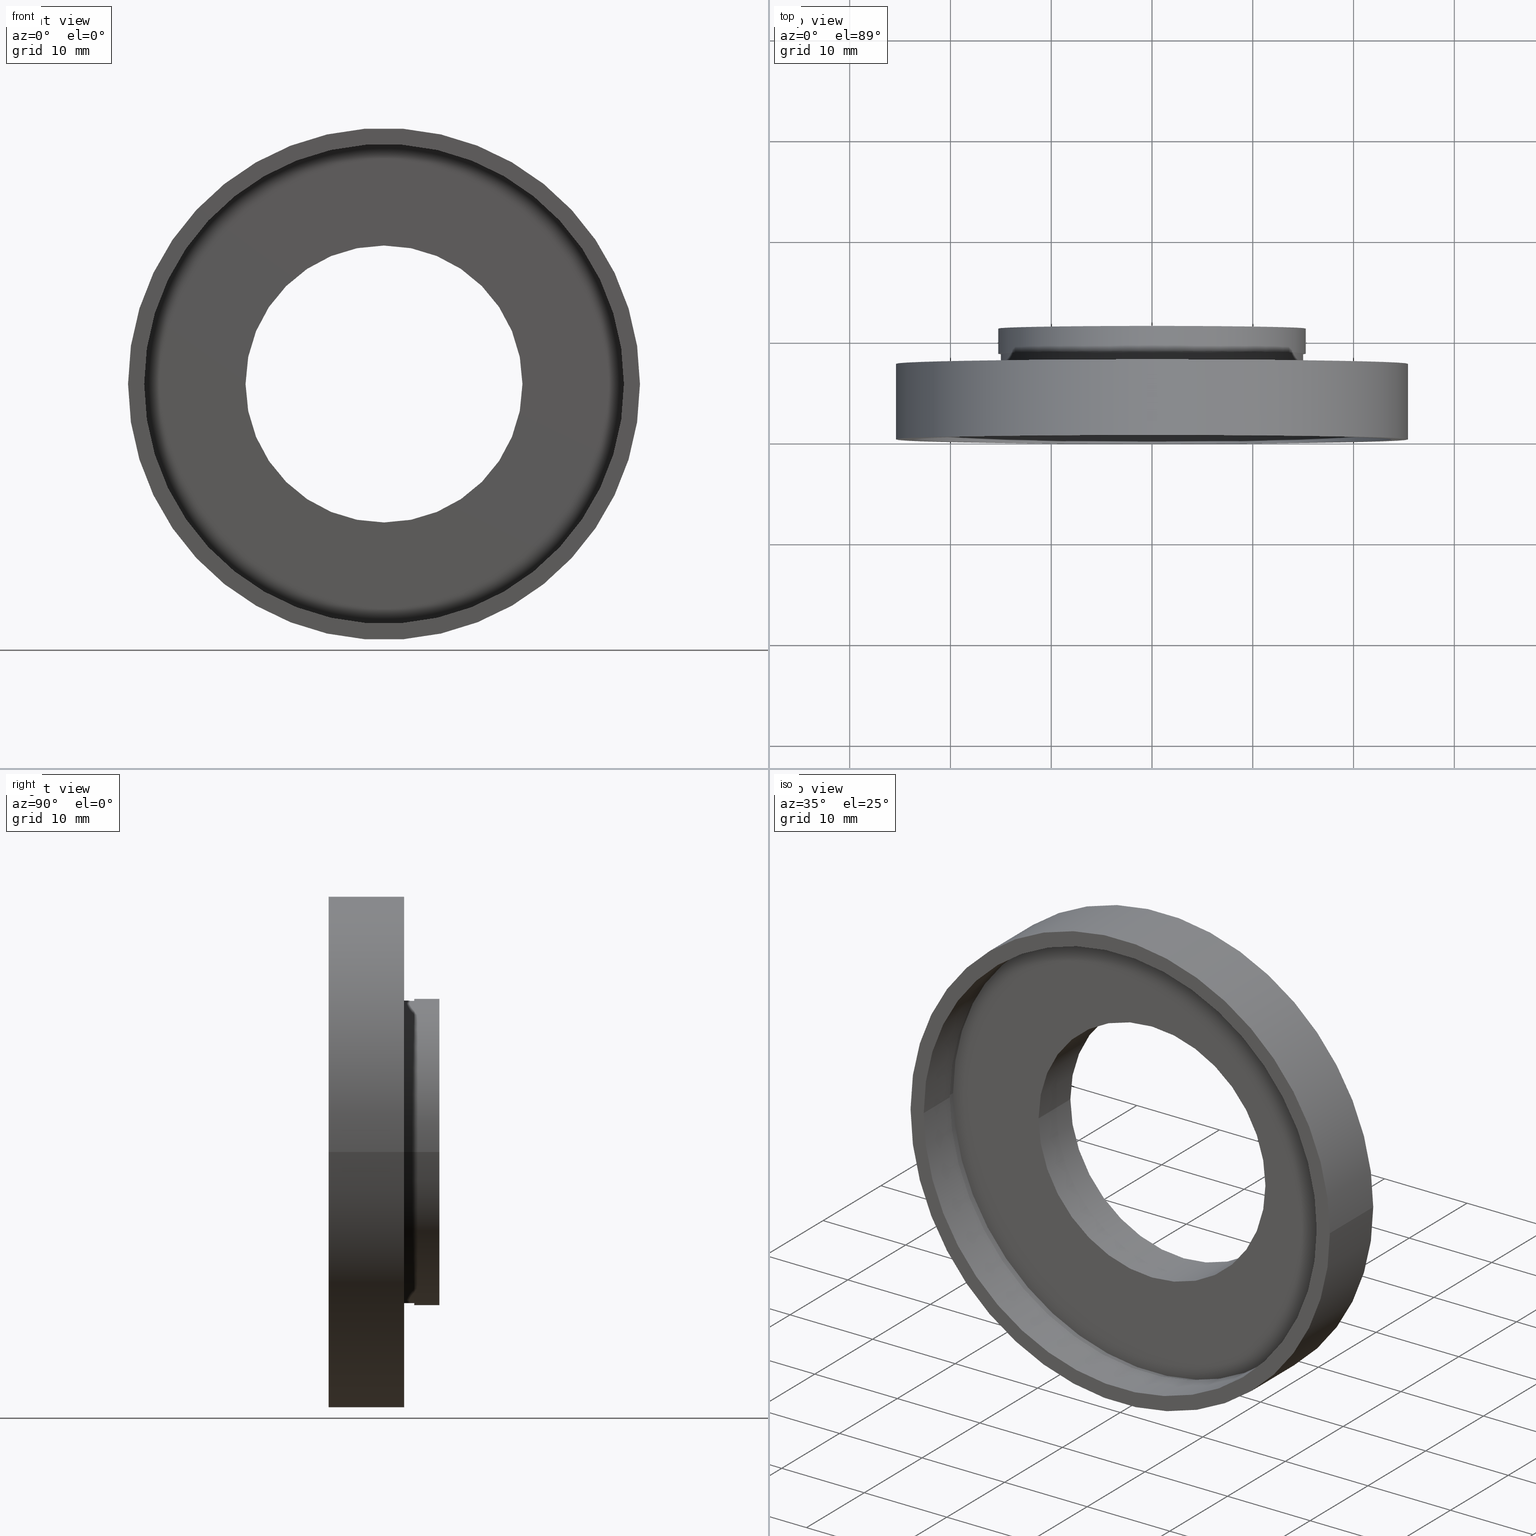
[diagram: canonical four-view strip — front | top / right | iso, engineering-drawing reading convention]
A machine part, canonical four-view strip (front | top / right | iso — engineering-drawing reading convention). The complete STEP part file that produces these views, byte-faithful:
ISO-10303-21;
HEADER;
FILE_DESCRIPTION (( 'STEP AP214' ),
    '1' );
FILE_NAME ('504100.STEP',
    '2019-10-09T07:24:55',
    ( '' ),
    ( '' ),
    'SwSTEP 2.0',
    'SolidWorks 2016',
    '' );
FILE_SCHEMA (( 'AUTOMOTIVE_DESIGN' ));
ENDSEC;

DATA;
#1 = ORIENTED_EDGE ( 'NONE', *, *, #409, .F. ) ;
#2 = FACE_BOUND ( 'NONE', #107, .T. ) ;
#3 = EDGE_CURVE ( 'NONE', #516, #128, #464, .T. ) ;
#4 = CARTESIAN_POINT ( 'NONE',  ( -25.39999999999999100, -6.580049821787884700E-015, 0.0000000000000000000 ) ) ;
#5 = VERTEX_POINT ( 'NONE', #575 ) ;
#6 = VERTEX_POINT ( 'NONE', #49 ) ;
#7 = SURFACE_SIDE_STYLE ('',( #26 ) ) ;
#8 =( GEOMETRIC_REPRESENTATION_CONTEXT ( 3 ) GLOBAL_UNCERTAINTY_ASSIGNED_CONTEXT ( ( #357 ) ) GLOBAL_UNIT_ASSIGNED_CONTEXT ( ( #582, #263, #218 ) ) REPRESENTATION_CONTEXT ( 'NONE', 'WORKASPACE' ) );
#9 = EDGE_CURVE ( 'NONE', #55, #352, #397, .T. ) ;
#10 = SURFACE_STYLE_FILL_AREA ( #11 ) ;
#11 = FILL_AREA_STYLE ('',( #349 ) ) ;
#12 = DIRECTION ( 'NONE',  ( -1.000000000000000000, -1.224646799147351000E-016, 0.0000000000000000000 ) ) ;
#13 = FILL_AREA_STYLE_COLOUR ( '', #207 ) ;
#14 = DIRECTION ( 'NONE',  ( -1.224646799147351000E-016, 1.000000000000000000, -0.0000000000000000000 ) ) ;
#15 = CARTESIAN_POINT ( 'NONE',  ( 15.26000000000000000, 16.88601823708208000, 1.868811015498860900E-015 ) ) ;
#16 =( NAMED_UNIT ( * ) SI_UNIT ( $, .STERADIAN. ) SOLID_ANGLE_UNIT ( ) );
#17 = ORIENTED_EDGE ( 'NONE', *, *, #246, .T. ) ;
#18 = FACE_OUTER_BOUND ( 'NONE', #399, .T. ) ;
#19 = AXIS2_PLACEMENT_3D ( 'NONE', #171, #318, #74 ) ;
#20 = CARTESIAN_POINT ( 'NONE',  ( -15.26000000000000000, 16.88601823708207300, 0.0000000000000000000 ) ) ;
#21 = PRESENTATION_LAYER_ASSIGNMENT (  '', '', ( #244 ) ) ;
#22 = DIRECTION ( 'NONE',  ( -1.000000000000000000, -2.273556325002368600E-016, 0.0000000000000000000 ) ) ;
#23 = CARTESIAN_POINT ( 'NONE',  ( 7.208293393765502500E-016, 10.99999999999999600, 0.0000000000000000000 ) ) ;
#24 = ORIENTED_EDGE ( 'NONE', *, *, #386, .T. ) ;
#25 = CARTESIAN_POINT ( 'NONE',  ( 1.394385078907593000E-015, 5.499999999999998200, 0.0000000000000000000 ) ) ;
#26 = SURFACE_STYLE_FILL_AREA ( #303 ) ;
#27 = DIRECTION ( 'NONE',  ( -1.000000000000000000, -1.079703408284319800E-016, 0.0000000000000000000 ) ) ;
#28 = FACE_OUTER_BOUND ( 'NONE', #489, .T. ) ;
#29 = DIRECTION ( 'NONE',  ( 1.224646799147351000E-016, -1.000000000000000000, 0.0000000000000000000 ) ) ;
#30 = ADVANCED_FACE ( 'NONE', ( #447, #537 ), #622, .F. ) ;
#31 = AXIS2_PLACEMENT_3D ( 'NONE', #621, #149, #354 ) ;
#32 =( GEOMETRIC_REPRESENTATION_CONTEXT ( 3 ) GLOBAL_UNCERTAINTY_ASSIGNED_CONTEXT ( ( #87 ) ) GLOBAL_UNIT_ASSIGNED_CONTEXT ( ( #212, #534, #16 ) ) REPRESENTATION_CONTEXT ( 'NONE', 'WORKASPACE' ) );
#33 = ADVANCED_FACE ( 'NONE', ( #431 ), #314, .F. ) ;
#34 = FACE_BOUND ( 'NONE', #568, .T. ) ;
#35 = APPLICATION_CONTEXT ( 'automotive_design' ) ;
#36 = CIRCLE ( 'NONE', #84, 23.80000000000000400 ) ;
#37 = VERTEX_POINT ( 'NONE', #555 ) ;
#38 = CARTESIAN_POINT ( 'NONE',  ( 1.394385078907593200E-015, 5.499999999999996400, 0.0000000000000000000 ) ) ;
#39 = VERTEX_POINT ( 'NONE', #459 ) ;
#40 = VECTOR ( 'NONE', #396, 1000.000000000000000 ) ;
#41 = STYLED_ITEM ( 'NONE', ( #296 ), #615 ) ;
#42 = APPLICATION_CONTEXT ( 'automotive_design' ) ;
#43 = EDGE_CURVE ( 'NONE', #128, #411, #36, .T. ) ;
#44 = CARTESIAN_POINT ( 'NONE',  ( -13.74000000000000200, 10.99999999999999500, 0.0000000000000000000 ) ) ;
#45 = ORIENTED_EDGE ( 'NONE', *, *, #301, .T. ) ;
#46 = COLOUR_RGB ( '',1.000000000000000000, 1.000000000000000000, 1.000000000000000000 ) ;
#47 = VECTOR ( 'NONE', #547, 1000.000000000000000 ) ;
#48 = FACE_BOUND ( 'NONE', #567, .T. ) ;
#49 = CARTESIAN_POINT ( 'NONE',  ( 15.00000000000000200, 7.500000000000000000, 1.836970198721029600E-015 ) ) ;
#50 = AXIS2_PLACEMENT_3D ( 'NONE', #264, #63, #161 ) ;
#51 = FILL_AREA_STYLE_COLOUR ( '', #581 ) ;
#52 = ORIENTED_EDGE ( 'NONE', *, *, #347, .T. ) ;
#53 = MECHANICAL_DESIGN_GEOMETRIC_PRESENTATION_REPRESENTATION (  '', ( #244 ), #461 ) ;
#54 = EDGE_LOOP ( 'NONE', ( #249, #270 ) ) ;
#55 = VERTEX_POINT ( 'NONE', #118 ) ;
#56 = CARTESIAN_POINT ( 'NONE',  ( 1.026991039163387900E-015, 8.499999999999996400, 0.0000000000000000000 ) ) ;
#57 = ORIENTED_EDGE ( 'NONE', *, *, #217, .T. ) ;
#58 = MECHANICAL_DESIGN_GEOMETRIC_PRESENTATION_REPRESENTATION (  '', ( #41 ), #262 ) ;
#59 = CIRCLE ( 'NONE', #216, 13.74000000000000000 ) ;
#60 = DIRECTION ( 'NONE',  ( -1.000000000000000000, -2.312964634635743000E-016, 0.0000000000000000000 ) ) ;
#61 = FILL_AREA_STYLE ('',( #51 ) ) ;
#62 = VERTEX_POINT ( 'NONE', #272 ) ;
#63 = DIRECTION ( 'NONE',  ( -1.224646799147351000E-016, 1.000000000000000000, -0.0000000000000000000 ) ) ;
#64 = FACE_OUTER_BOUND ( 'NONE', #214, .T. ) ;
#65 = FILL_AREA_STYLE ('',( #13 ) ) ;
#66 = ORIENTED_EDGE ( 'NONE', *, *, #306, .T. ) ;
#67 = DIRECTION ( 'NONE',  ( -1.000000000000000000, -1.457750820148577400E-016, 0.0000000000000000000 ) ) ;
#68 = STYLED_ITEM ( 'NONE', ( #506 ), #280 ) ;
#69 = EDGE_CURVE ( 'NONE', #261, #616, #545, .T. ) ;
#70 = CARTESIAN_POINT ( 'NONE',  ( 25.39999999999999900, 16.88601823708208000, 3.110602869834276900E-015 ) ) ;
#71 = FACE_OUTER_BOUND ( 'NONE', #428, .T. ) ;
#72 =( GEOMETRIC_REPRESENTATION_CONTEXT ( 3 ) GLOBAL_UNCERTAINTY_ASSIGNED_CONTEXT ( ( #467 ) ) GLOBAL_UNIT_ASSIGNED_CONTEXT ( ( #361, #112, #298 ) ) REPRESENTATION_CONTEXT ( 'NONE', 'WORKASPACE' ) );
#73 =( NAMED_UNIT ( * ) PLANE_ANGLE_UNIT ( ) SI_UNIT ( $, .RADIAN. ) );
#74 = DIRECTION ( 'NONE',  ( -1.000000000000000000, -1.224646799147351000E-016, 0.0000000000000000000 ) ) ;
#75 = CARTESIAN_POINT ( 'NONE',  ( 25.39999999999999900, -1.592040838891564500E-016, 0.0000000000000000000 ) ) ;
#76 = DIRECTION ( 'NONE',  ( 1.224646799147351000E-016, -1.000000000000000000, 0.0000000000000000000 ) ) ;
#77 = ORIENTED_EDGE ( 'NONE', *, *, #133, .T. ) ;
#78 = EDGE_CURVE ( 'NONE', #616, #382, #426, .T. ) ;
#79 = DIRECTION ( 'NONE',  ( -1.224646799147351000E-016, 1.000000000000000000, 0.0000000000000000000 ) ) ;
#80 = ORIENTED_EDGE ( 'NONE', *, *, #279, .F. ) ;
#81 = CARTESIAN_POINT ( 'NONE',  ( 1.149455719078122700E-015, 7.499999999999998200, 0.0000000000000000000 ) ) ;
#82 = DIRECTION ( 'NONE',  ( -1.224646799147351000E-016, 1.000000000000000000, -0.0000000000000000000 ) ) ;
#83 = CIRCLE ( 'NONE', #50, 23.80000000000000400 ) ;
#84 = AXIS2_PLACEMENT_3D ( 'NONE', #227, #417, #458 ) ;
#85 = EDGE_CURVE ( 'NONE', #480, #516, #173, .T. ) ;
#86 = ORIENTED_EDGE ( 'NONE', *, *, #279, .T. ) ;
#87 = UNCERTAINTY_MEASURE_WITH_UNIT (LENGTH_MEASURE( 1.000000000000000100E-005 ), #212, 'distance_accuracy_value', 'NONE');
#88 = DIRECTION ( 'NONE',  ( -1.000000000000000000, 0.0000000000000000000, 0.0000000000000000000 ) ) ;
#89 = EDGE_LOOP ( 'NONE', ( #143, #177, #52, #551 ) ) ;
#90 = ADVANCED_FACE ( 'NONE', ( #284, #334 ), #548, .F. ) ;
#91 = DIRECTION ( 'NONE',  ( -1.224646799147351000E-016, 1.000000000000000000, -0.0000000000000000000 ) ) ;
#92 = ORIENTED_EDGE ( 'NONE', *, *, #294, .F. ) ;
#93 = CIRCLE ( 'NONE', #577, 25.39999999999999500 ) ;
#94 = EDGE_LOOP ( 'NONE', ( #446, #474, #472, #526 ) ) ;
#95 = ORIENTED_EDGE ( 'NONE', *, *, #369, .F. ) ;
#96 = DIRECTION ( 'NONE',  ( -1.000000000000000000, -1.224646799147351000E-016, 0.0000000000000000000 ) ) ;
#97 = AXIS2_PLACEMENT_3D ( 'NONE', #453, #586, #12 ) ;
#98 = AXIS2_PLACEMENT_3D ( 'NONE', #213, #588, #307 ) ;
#99 = UNCERTAINTY_MEASURE_WITH_UNIT (LENGTH_MEASURE( 1.000000000000000100E-005 ), #511, 'distance_accuracy_value', 'NONE');
#100 = CIRCLE ( 'NONE', #132, 13.74000000000000000 ) ;
#101 = CARTESIAN_POINT ( 'NONE',  ( 13.74000000000000200, 5.499999999999999100, 0.0000000000000000000 ) ) ;
#102 = PRODUCT ( '504100', '504100', '', ( #432 ) ) ;
#103 = AXIS2_PLACEMENT_3D ( 'NONE', #620, #390, #191 ) ;
#104 = CARTESIAN_POINT ( 'NONE',  ( -15.25999999999999800, 8.499999999999994700, 0.0000000000000000000 ) ) ;
#105 = EDGE_LOOP ( 'NONE', ( #66, #344 ) ) ;
#106 = EDGE_CURVE ( 'NONE', #541, #37, #204, .T. ) ;
#107 = EDGE_LOOP ( 'NONE', ( #427, #573 ) ) ;
#108 = CARTESIAN_POINT ( 'NONE',  ( 15.26000000000000300, 8.499999999999998200, 1.868811015498861300E-015 ) ) ;
#109 = ORIENTED_EDGE ( 'NONE', *, *, #43, .F. ) ;
#110 = AXIS2_PLACEMENT_3D ( 'NONE', #224, #372, #235 ) ;
#111 = EDGE_CURVE ( 'NONE', #127, #226, #190, .T. ) ;
#112 =( NAMED_UNIT ( * ) PLANE_ANGLE_UNIT ( ) SI_UNIT ( $, .RADIAN. ) );
#113 = CARTESIAN_POINT ( 'NONE',  ( -23.79999999999999700, -6.384106333924309500E-015, 0.0000000000000000000 ) ) ;
#114 = DIRECTION ( 'NONE',  ( -1.224646799147351000E-016, 1.000000000000000000, -0.0000000000000000000 ) ) ;
#115 = EDGE_CURVE ( 'NONE', #226, #127, #457, .T. ) ;
#116 = LINE ( 'NONE', #597, #612 ) ;
#117 = DIRECTION ( 'NONE',  ( -1.224646799147351000E-016, 1.000000000000000000, -0.0000000000000000000 ) ) ;
#118 = CARTESIAN_POINT ( 'NONE',  ( 15.00000000000000200, 8.499999999999998200, 1.836970198721029600E-015 ) ) ;
#119 = AXIS2_PLACEMENT_3D ( 'NONE', #600, #76, #121 ) ;
#120 = LINE ( 'NONE', #70, #614 ) ;
#121 = DIRECTION ( 'NONE',  ( 1.000000000000000000, 1.224646799147351000E-016, 0.0000000000000000000 ) ) ;
#122 = CARTESIAN_POINT ( 'NONE',  ( -14.99999999999999800, 7.499999999999996400, 0.0000000000000000000 ) ) ;
#123 = CARTESIAN_POINT ( 'NONE',  ( 13.74000000000000200, 10.99999999999999800, 1.682664702028463500E-015 ) ) ;
#124 = DIRECTION ( 'NONE',  ( 1.000000000000000000, 1.224646799147351000E-016, 0.0000000000000000000 ) ) ;
#125 = DIRECTION ( 'NONE',  ( -1.000000000000000000, -1.457750820148577400E-016, 0.0000000000000000000 ) ) ;
#126 = CARTESIAN_POINT ( 'NONE',  ( 7.208293393765502500E-016, 10.99999999999999600, 0.0000000000000000000 ) ) ;
#127 = VERTEX_POINT ( 'NONE', #123 ) ;
#128 = VERTEX_POINT ( 'NONE', #179 ) ;
#129 = CARTESIAN_POINT ( 'NONE',  ( 13.74000000000000200, 10.99999999999999800, 0.0000000000000000000 ) ) ;
#130 = CARTESIAN_POINT ( 'NONE',  ( 24.10000000000000100, 5.499999999999999100, 2.951398785945121300E-015 ) ) ;
#131 = PRESENTATION_STYLE_ASSIGNMENT (( #299 ) ) ;
#132 = AXIS2_PLACEMENT_3D ( 'NONE', #25, #495, #269 ) ;
#133 = EDGE_CURVE ( 'NONE', #37, #541, #442, .T. ) ;
#134 = ORIENTED_EDGE ( 'NONE', *, *, #499, .T. ) ;
#135 = ADVANCED_FACE ( 'NONE', ( #528, #71 ), #558, .F. ) ;
#136 = CIRCLE ( 'NONE', #536, 15.26000000000000000 ) ;
#137 =( NAMED_UNIT ( * ) PLANE_ANGLE_UNIT ( ) SI_UNIT ( $, .RADIAN. ) );
#138 = ADVANCED_FACE ( 'NONE', ( #219 ), #574, .F. ) ;
#139 = APPLICATION_PROTOCOL_DEFINITION ( 'draft international standard', 'automotive_design', 1998, #42 ) ;
#140 = VERTEX_POINT ( 'NONE', #130 ) ;
#141 = DIRECTION ( 'NONE',  ( -1.224646799147351000E-016, 1.000000000000000000, -0.0000000000000000000 ) ) ;
#142 = COLOUR_RGB ( '',1.000000000000000000, 1.000000000000000000, 1.000000000000000000 ) ;
#143 = ORIENTED_EDGE ( 'NONE', *, *, #185, .F. ) ;
#144 = DIRECTION ( 'NONE',  ( -1.000000000000000000, -1.224646799147351000E-016, 0.0000000000000000000 ) ) ;
#145 =( NAMED_UNIT ( * ) PLANE_ANGLE_UNIT ( ) SI_UNIT ( $, .RADIAN. ) );
#146 = AXIS2_PLACEMENT_3D ( 'NONE', #208, #91, #404 ) ;
#147 = COLOUR_RGB ( '',1.000000000000000000, 1.000000000000000000, 1.000000000000000000 ) ;
#148 = EDGE_CURVE ( 'NONE', #39, #274, #93, .T. ) ;
#149 = DIRECTION ( 'NONE',  ( -1.224646799147351000E-016, 1.000000000000000000, -0.0000000000000000000 ) ) ;
#150 = DIRECTION ( 'NONE',  ( -1.224646799147351000E-016, 1.000000000000000000, -0.0000000000000000000 ) ) ;
#151 = SURFACE_STYLE_FILL_AREA ( #478 ) ;
#152 = CARTESIAN_POINT ( 'NONE',  ( 0.0000000000000000000, 16.88601823708207700, 0.0000000000000000000 ) ) ;
#153 = STYLED_ITEM ( 'NONE', ( #413 ), #520 ) ;
#154 = EDGE_LOOP ( 'NONE', ( #109, #485 ) ) ;
#155 = DIRECTION ( 'NONE',  ( -1.224646799147351000E-016, 1.000000000000000000, -0.0000000000000000000 ) ) ;
#156 =( NAMED_UNIT ( * ) PLANE_ANGLE_UNIT ( ) SI_UNIT ( $, .RADIAN. ) );
#157 = ORIENTED_EDGE ( 'NONE', *, *, #351, .F. ) ;
#158 = DIRECTION ( 'NONE',  ( -1.000000000000000000, -2.273556325002368600E-016, 0.0000000000000000000 ) ) ;
#159 = CARTESIAN_POINT ( 'NONE',  ( -24.10000000000000100, 4.499999999999994700, 0.0000000000000000000 ) ) ;
#160 = CARTESIAN_POINT ( 'NONE',  ( 0.0000000000000000000, 16.88601823708207700, 0.0000000000000000000 ) ) ;
#161 = DIRECTION ( 'NONE',  ( -1.000000000000000000, -1.093313115111432900E-016, 0.0000000000000000000 ) ) ;
#162 = CARTESIAN_POINT ( 'NONE',  ( 25.39999999999999900, 7.500000000000000000, 3.110602869834276900E-015 ) ) ;
#163 = FILL_AREA_STYLE_COLOUR ( '', #46 ) ;
#164 = ORIENTED_EDGE ( 'NONE', *, *, #9, .T. ) ;
#165 = SURFACE_SIDE_STYLE ('',( #10 ) ) ;
#166 = PRESENTATION_LAYER_ASSIGNMENT (  '', '', ( #184 ) ) ;
#167 = EDGE_CURVE ( 'NONE', #140, #62, #332, .T. ) ;
#168 = DIRECTION ( 'NONE',  ( -1.000000000000000000, -2.312964634635743000E-016, 0.0000000000000000000 ) ) ;
#169 = CARTESIAN_POINT ( 'NONE',  ( -14.99999999999999800, 8.499999999999994700, 0.0000000000000000000 ) ) ;
#170 = PRESENTATION_STYLE_ASSIGNMENT (( #493 ) ) ;
#171 = CARTESIAN_POINT ( 'NONE',  ( 2.067940818438636500E-015, -3.469446951953614200E-015, 0.0000000000000000000 ) ) ;
#172 = DIRECTION ( 'NONE',  ( -1.000000000000000000, -1.262535280914706900E-016, 0.0000000000000000000 ) ) ;
#173 = CIRCLE ( 'NONE', #19, 23.80000000000000100 ) ;
#174 = CARTESIAN_POINT ( 'NONE',  ( 1.394385078907593000E-015, 5.499999999999998200, 0.0000000000000000000 ) ) ;
#175 = PRODUCT_DEFINITION_CONTEXT ( 'detailed design', #35, 'design' ) ;
#176 = DIRECTION ( 'NONE',  ( -1.000000000000000000, -1.224646799147351000E-016, 0.0000000000000000000 ) ) ;
#177 = ORIENTED_EDGE ( 'NONE', *, *, #306, .F. ) ;
#178 = CYLINDRICAL_SURFACE ( 'NONE', #319, 15.00000000000000000 ) ;
#179 = CARTESIAN_POINT ( 'NONE',  ( -23.80000000000000400, 4.499999999999994700, 0.0000000000000000000 ) ) ;
#180 = VECTOR ( 'NONE', #585, 1000.000000000000000 ) ;
#181 = CIRCLE ( 'NONE', #476, 24.10000000000000100 ) ;
#182 = DIRECTION ( 'NONE',  ( -1.000000000000000000, -1.136778162501184300E-016, 0.0000000000000000000 ) ) ;
#183 = FILL_AREA_STYLE ('',( #237 ) ) ;
#184 = STYLED_ITEM ( 'NONE', ( #389 ), #245 ) ;
#185 = EDGE_CURVE ( 'NONE', #557, #127, #360, .T. ) ;
#186 = EDGE_LOOP ( 'NONE', ( #496, #618, #57, #490 ) ) ;
#187 = ORIENTED_EDGE ( 'NONE', *, *, #106, .T. ) ;
#188 = FACE_OUTER_BOUND ( 'NONE', #308, .T. ) ;
#189 = ADVANCED_FACE ( 'NONE', ( #64 ), #479, .F. ) ;
#190 = CIRCLE ( 'NONE', #513, 13.74000000000000200 ) ;
#191 = DIRECTION ( 'NONE',  ( 1.000000000000000000, 0.0000000000000000000, 0.0000000000000000000 ) ) ;
#192 = PRESENTATION_LAYER_ASSIGNMENT (  '', '', ( #153 ) ) ;
#193 = ORIENTED_EDGE ( 'NONE', *, *, #376, .F. ) ;
#194 = APPLICATION_PROTOCOL_DEFINITION ( 'draft international standard', 'automotive_design', 1998, #35 ) ;
#195 = ORIENTED_EDGE ( 'NONE', *, *, #499, .F. ) ;
#196 = LINE ( 'NONE', #15, #469 ) ;
#197 = DIRECTION ( 'NONE',  ( -1.000000000000000000, -1.136778162501184300E-016, 0.0000000000000000000 ) ) ;
#198 = ORIENTED_EDGE ( 'NONE', *, *, #78, .F. ) ;
#199 = SURFACE_STYLE_USAGE ( .BOTH. , #571 ) ;
#200 = EDGE_LOOP ( 'NONE', ( #187, #77 ) ) ;
#201 = COLOUR_RGB ( '',1.000000000000000000, 1.000000000000000000, 1.000000000000000000 ) ;
#202 = STYLED_ITEM ( 'NONE', ( #379 ), #138 ) ;
#203 = AXIS2_PLACEMENT_3D ( 'NONE', #441, #150, #205 ) ;
#204 = CIRCLE ( 'NONE', #241, 24.10000000000000100 ) ;
#205 = DIRECTION ( 'NONE',  ( -1.000000000000000000, -1.156482317317871500E-016, 0.0000000000000000000 ) ) ;
#206 = PRODUCT_DEFINITION ( 'δ֪', '', #580, #175 ) ;
#207 = COLOUR_RGB ( '',1.000000000000000000, 1.000000000000000000, 1.000000000000000000 ) ;
#208 = CARTESIAN_POINT ( 'NONE',  ( 0.0000000000000000000, 16.88601823708207700, 0.0000000000000000000 ) ) ;
#209 = EDGE_LOOP ( 'NONE', ( #381, #320 ) ) ;
#210 =( NAMED_UNIT ( * ) SI_UNIT ( $, .STERADIAN. ) SOLID_ANGLE_UNIT ( ) );
#211 = CIRCLE ( 'NONE', #293, 15.00000000000000000 ) ;
#212 =( LENGTH_UNIT ( ) NAMED_UNIT ( * ) SI_UNIT ( .MILLI., .METRE. ) );
#213 = CARTESIAN_POINT ( 'NONE',  ( 1.149455719078123100E-015, 7.499999999999996400, 0.0000000000000000000 ) ) ;
#214 = EDGE_LOOP ( 'NONE', ( #525, #276, #439, #157 ) ) ;
#215 = CARTESIAN_POINT ( 'NONE',  ( 23.80000000000000100, 16.88601823708208000, 2.914659381970700800E-015 ) ) ;
#216 = AXIS2_PLACEMENT_3D ( 'NONE', #174, #117, #172 ) ;
#217 = EDGE_CURVE ( 'NONE', #403, #352, #607, .T. ) ;
#218 =( NAMED_UNIT ( * ) SI_UNIT ( $, .STERADIAN. ) SOLID_ANGLE_UNIT ( ) );
#219 = FACE_OUTER_BOUND ( 'NONE', #363, .T. ) ;
#220 = CARTESIAN_POINT ( 'NONE',  ( 15.26000000000000000, 10.99999999999999800, 1.868811015498860900E-015 ) ) ;
#221 = SURFACE_SIDE_STYLE ('',( #554 ) ) ;
#222 = UNCERTAINTY_MEASURE_WITH_UNIT (LENGTH_MEASURE( 1.000000000000000100E-005 ), #617, 'distance_accuracy_value', 'NONE');
#223 = CARTESIAN_POINT ( 'NONE',  ( 7.208293393765502500E-016, 10.99999999999999600, 0.0000000000000000000 ) ) ;
#224 = CARTESIAN_POINT ( 'NONE',  ( 1.026991039163387900E-015, 8.499999999999996400, 0.0000000000000000000 ) ) ;
#225 = PLANE ( 'NONE',  #327 ) ;
#226 = VERTEX_POINT ( 'NONE', #44 ) ;
#227 = CARTESIAN_POINT ( 'NONE',  ( 1.516849758822328300E-015, 4.499999999999997300, 0.0000000000000000000 ) ) ;
#228 = ORIENTED_EDGE ( 'NONE', *, *, #273, .T. ) ;
#229 = AXIS2_PLACEMENT_3D ( 'NONE', #266, #114, #168 ) ;
#230 =( LENGTH_UNIT ( ) NAMED_UNIT ( * ) SI_UNIT ( .MILLI., .METRE. ) );
#231 = SURFACE_STYLE_FILL_AREA ( #61 ) ;
#232 = PLANE ( 'NONE',  #394 ) ;
#233 = ORIENTED_EDGE ( 'NONE', *, *, #106, .F. ) ;
#234 = CIRCLE ( 'NONE', #31, 15.00000000000000000 ) ;
#235 = DIRECTION ( 'NONE',  ( -1.000000000000000000, -1.136778162501184300E-016, 0.0000000000000000000 ) ) ;
#236 = DIRECTION ( 'NONE',  ( -1.000000000000000000, -1.224646799147351000E-016, 0.0000000000000000000 ) ) ;
#237 = FILL_AREA_STYLE_COLOUR ( '', #504 ) ;
#238 = EDGE_LOOP ( 'NONE', ( #24, #604, #508, #550 ) ) ;
#239 = ORIENTED_EDGE ( 'NONE', *, *, #3, .F. ) ;
#240 = VECTOR ( 'NONE', #398, 1000.000000000000000 ) ;
#241 = AXIS2_PLACEMENT_3D ( 'NONE', #505, #595, #326 ) ;
#242 = EDGE_CURVE ( 'NONE', #616, #261, #452, .T. ) ;
#243 = ADVANCED_FACE ( 'NONE', ( #438 ), #178, .T. ) ;
#244 = STYLED_ITEM ( 'NONE', ( #503 ), #289 ) ;
#245 = ADVANCED_FACE ( 'NONE', ( #18 ), #265, .T. ) ;
#246 = EDGE_CURVE ( 'NONE', #516, #480, #570, .T. ) ;
#247 = ORIENTED_EDGE ( 'NONE', *, *, #148, .F. ) ;
#248 = UNCERTAINTY_MEASURE_WITH_UNIT (LENGTH_MEASURE( 1.000000000000000100E-005 ), #337, 'distance_accuracy_value', 'NONE');
#249 = ORIENTED_EDGE ( 'NONE', *, *, #530, .F. ) ;
#250 = CARTESIAN_POINT ( 'NONE',  ( 0.0000000000000000000, 16.88601823708207700, 0.0000000000000000000 ) ) ;
#251 = AXIS2_PLACEMENT_3D ( 'NONE', #250, #402, #158 ) ;
#252 = EDGE_CURVE ( 'NONE', #5, #491, #374, .T. ) ;
#253 = DIRECTION ( 'NONE',  ( -1.224646799147351000E-016, 1.000000000000000000, -0.0000000000000000000 ) ) ;
#254 = ORIENTED_EDGE ( 'NONE', *, *, #78, .T. ) ;
#255 = EDGE_CURVE ( 'NONE', #352, #55, #234, .T. ) ;
#256 = CYLINDRICAL_SURFACE ( 'NONE', #229, 15.00000000000000000 ) ;
#257 = MECHANICAL_DESIGN_GEOMETRIC_PRESENTATION_REPRESENTATION (  '', ( #153 ), #8 ) ;
#258 = AXIS2_PLACEMENT_3D ( 'NONE', #56, #433, #197 ) ;
#259 = SURFACE_STYLE_FILL_AREA ( #183 ) ;
#260 = ORIENTED_EDGE ( 'NONE', *, *, #351, .T. ) ;
#261 = VERTEX_POINT ( 'NONE', #108 ) ;
#262 =( GEOMETRIC_REPRESENTATION_CONTEXT ( 3 ) GLOBAL_UNCERTAINTY_ASSIGNED_CONTEXT ( ( #589 ) ) GLOBAL_UNIT_ASSIGNED_CONTEXT ( ( #533, #156, #210 ) ) REPRESENTATION_CONTEXT ( 'NONE', 'WORKASPACE' ) );
#263 =( NAMED_UNIT ( * ) PLANE_ANGLE_UNIT ( ) SI_UNIT ( $, .RADIAN. ) );
#264 = CARTESIAN_POINT ( 'NONE',  ( 1.516849758822328300E-015, 4.499999999999997300, 0.0000000000000000000 ) ) ;
#265 = CYLINDRICAL_SURFACE ( 'NONE', #251, 15.26000000000000000 ) ;
#266 = CARTESIAN_POINT ( 'NONE',  ( 0.0000000000000000000, 16.88601823708207700, 0.0000000000000000000 ) ) ;
#267 = CARTESIAN_POINT ( 'NONE',  ( 15.00000000000000200, 7.499999999999999100, 0.0000000000000000000 ) ) ;
#268 = AXIS2_PLACEMENT_3D ( 'NONE', #160, #445, #540 ) ;
#269 = DIRECTION ( 'NONE',  ( -1.000000000000000000, -1.262535280914706900E-016, 0.0000000000000000000 ) ) ;
#270 = ORIENTED_EDGE ( 'NONE', *, *, #167, .F. ) ;
#271 = CYLINDRICAL_SURFACE ( 'NONE', #572, 25.39999999999999900 ) ;
#272 = CARTESIAN_POINT ( 'NONE',  ( -24.10000000000000100, 5.499999999999993800, 0.0000000000000000000 ) ) ;
#273 = EDGE_CURVE ( 'NONE', #480, #411, #364, .T. ) ;
#274 = VERTEX_POINT ( 'NONE', #4 ) ;
#275 = DIRECTION ( 'NONE',  ( -1.224646799147351000E-016, 1.000000000000000000, -0.0000000000000000000 ) ) ;
#276 = ORIENTED_EDGE ( 'NONE', *, *, #376, .T. ) ;
#277 =( NAMED_UNIT ( * ) SI_UNIT ( $, .STERADIAN. ) SOLID_ANGLE_UNIT ( ) );
#278 =( GEOMETRIC_REPRESENTATION_CONTEXT ( 3 ) GLOBAL_UNCERTAINTY_ASSIGNED_CONTEXT ( ( #587 ) ) GLOBAL_UNIT_ASSIGNED_CONTEXT ( ( #539, #145, #450 ) ) REPRESENTATION_CONTEXT ( 'NONE', 'WORKASPACE' ) );
#279 = EDGE_CURVE ( 'NONE', #274, #5, #592, .T. ) ;
#280 = ADVANCED_FACE ( 'NONE', ( #517 ), #329, .F. ) ;
#281 = PRODUCT_RELATED_PRODUCT_CATEGORY ( 'part', '', ( #102 ) ) ;
#282 = VERTEX_POINT ( 'NONE', #220 ) ;
#283 = FACE_OUTER_BOUND ( 'NONE', #609, .T. ) ;
#284 = FACE_BOUND ( 'NONE', #154, .T. ) ;
#285 = AXIS2_PLACEMENT_3D ( 'NONE', #38, #430, #603 ) ;
#286 = CARTESIAN_POINT ( 'NONE',  ( 13.74000000000000200, 16.88601823708207700, 1.682664702028463500E-015 ) ) ;
#287 = COLOUR_RGB ( '',1.000000000000000000, 1.000000000000000000, 1.000000000000000000 ) ;
#288 =( GEOMETRIC_REPRESENTATION_CONTEXT ( 3 ) GLOBAL_UNCERTAINTY_ASSIGNED_CONTEXT ( ( #222 ) ) GLOBAL_UNIT_ASSIGNED_CONTEXT ( ( #617, #365, #309 ) ) REPRESENTATION_CONTEXT ( 'NONE', 'WORKASPACE' ) );
#289 = ADVANCED_BREP_SHAPE_REPRESENTATION ( '504100', ( #520, #103 ), #72 ) ;
#290 = SURFACE_STYLE_USAGE ( .BOTH. , #7 ) ;
#291 = CARTESIAN_POINT ( 'NONE',  ( 0.0000000000000000000, 16.88601823708207700, 0.0000000000000000000 ) ) ;
#292 = CIRCLE ( 'NONE', #509, 15.26000000000000000 ) ;
#293 = AXIS2_PLACEMENT_3D ( 'NONE', #81, #549, #599 ) ;
#294 = EDGE_CURVE ( 'NONE', #274, #39, #342, .T. ) ;
#295 = LINE ( 'NONE', #497, #47 ) ;
#296 = PRESENTATION_STYLE_ASSIGNMENT (( #407 ) ) ;
#297 = VECTOR ( 'NONE', #315, 1000.000000000000000 ) ;
#298 =( NAMED_UNIT ( * ) SI_UNIT ( $, .STERADIAN. ) SOLID_ANGLE_UNIT ( ) );
#299 = SURFACE_STYLE_USAGE ( .BOTH. , #165 ) ;
#300 = DIRECTION ( 'NONE',  ( -1.224646799147351000E-016, 1.000000000000000000, -0.0000000000000000000 ) ) ;
#301 = EDGE_CURVE ( 'NONE', #411, #128, #83, .T. ) ;
#302 = CARTESIAN_POINT ( 'NONE',  ( -15.00000000000000000, 16.88601823708207300, 0.0000000000000000000 ) ) ;
#303 = FILL_AREA_STYLE ('',( #522 ) ) ;
#304 = DIRECTION ( 'NONE',  ( -1.000000000000000000, -1.079703408284319800E-016, 0.0000000000000000000 ) ) ;
#305 = AXIS2_PLACEMENT_3D ( 'NONE', #377, #82, #419 ) ;
#306 = EDGE_CURVE ( 'NONE', #358, #557, #59, .T. ) ;
#307 = DIRECTION ( 'NONE',  ( -1.000000000000000000, -1.365923996832131600E-016, 0.0000000000000000000 ) ) ;
#308 = EDGE_LOOP ( 'NONE', ( #324, #460, #1, #198 ) ) ;
#309 =( NAMED_UNIT ( * ) SI_UNIT ( $, .STERADIAN. ) SOLID_ANGLE_UNIT ( ) );
#310 = CARTESIAN_POINT ( 'NONE',  ( 0.0000000000000000000, 16.88601823708207700, 0.0000000000000000000 ) ) ;
#311 = DIRECTION ( 'NONE',  ( -1.000000000000000000, -1.136778162501184300E-016, 0.0000000000000000000 ) ) ;
#312 = FACE_OUTER_BOUND ( 'NONE', #89, .T. ) ;
#313 = DIRECTION ( 'NONE',  ( 1.224646799147351000E-016, -1.000000000000000000, 0.0000000000000000000 ) ) ;
#314 = CYLINDRICAL_SURFACE ( 'NONE', #484, 23.80000000000000100 ) ;
#315 = DIRECTION ( 'NONE',  ( -1.224646799147351000E-016, 1.000000000000000000, -0.0000000000000000000 ) ) ;
#316 = EDGE_CURVE ( 'NONE', #282, #382, #292, .T. ) ;
#317 = DIRECTION ( 'NONE',  ( -1.224646799147351000E-016, 1.000000000000000000, -0.0000000000000000000 ) ) ;
#318 = DIRECTION ( 'NONE',  ( -1.224646799147351000E-016, 1.000000000000000000, -0.0000000000000000000 ) ) ;
#319 = AXIS2_PLACEMENT_3D ( 'NONE', #482, #155, #60 ) ;
#320 = ORIENTED_EDGE ( 'NONE', *, *, #111, .F. ) ;
#321 = VECTOR ( 'NONE', #317, 1000.000000000000000 ) ;
#322 = CLOSED_SHELL ( 'NONE', ( #566, #473, #387, #138, #189, #280, #333, #33, #90, #521, #30, #615, #135, #245, #470, #243, #391, #512 ) ) ;
#323 = SHAPE_DEFINITION_REPRESENTATION ( #514, #289 ) ;
#324 = ORIENTED_EDGE ( 'NONE', *, *, #242, .T. ) ;
#325 = CYLINDRICAL_SURFACE ( 'NONE', #268, 25.39999999999999900 ) ;
#326 = DIRECTION ( 'NONE',  ( -1.000000000000000000, -1.079703408284319800E-016, 0.0000000000000000000 ) ) ;
#327 = AXIS2_PLACEMENT_3D ( 'NONE', #75, #79, #176 ) ;
#328 = CARTESIAN_POINT ( 'NONE',  ( 15.00000000000000000, 16.88601823708208000, 1.836970198721029600E-015 ) ) ;
#329 = CYLINDRICAL_SURFACE ( 'NONE', #606, 23.80000000000000100 ) ;
#330 = DIRECTION ( 'NONE',  ( -1.224646799147351000E-016, 1.000000000000000000, -0.0000000000000000000 ) ) ;
#331 = EDGE_LOOP ( 'NONE', ( #378, #341 ) ) ;
#332 = CIRCLE ( 'NONE', #285, 24.10000000000000100 ) ;
#333 = ADVANCED_FACE ( 'NONE', ( #28, #48 ), #225, .F. ) ;
#334 = FACE_OUTER_BOUND ( 'NONE', #200, .T. ) ;
#335 = AXIS2_PLACEMENT_3D ( 'NONE', #501, #415, #22 ) ;
#336 = EDGE_CURVE ( 'NONE', #261, #282, #196, .T. ) ;
#337 =( LENGTH_UNIT ( ) NAMED_UNIT ( * ) SI_UNIT ( .MILLI., .METRE. ) );
#338 = ORIENTED_EDGE ( 'NONE', *, *, #530, .T. ) ;
#339 = FACE_OUTER_BOUND ( 'NONE', #238, .T. ) ;
#340 =( NAMED_UNIT ( * ) SI_UNIT ( $, .STERADIAN. ) SOLID_ANGLE_UNIT ( ) );
#341 = ORIENTED_EDGE ( 'NONE', *, *, #69, .F. ) ;
#342 = CIRCLE ( 'NONE', #97, 25.39999999999999500 ) ;
#343 = SURFACE_SIDE_STYLE ('',( #543 ) ) ;
#344 = ORIENTED_EDGE ( 'NONE', *, *, #369, .T. ) ;
#345 = VECTOR ( 'NONE', #359, 1000.000000000000000 ) ;
#346 = AXIS2_PLACEMENT_3D ( 'NONE', #129, #29, #422 ) ;
#347 = EDGE_CURVE ( 'NONE', #358, #226, #578, .T. ) ;
#348 = DIRECTION ( 'NONE',  ( -1.224646799147351000E-016, 1.000000000000000000, 0.0000000000000000000 ) ) ;
#349 = FILL_AREA_STYLE_COLOUR ( '', #147 ) ;
#350 = CARTESIAN_POINT ( 'NONE',  ( 0.0000000000000000000, 16.88601823708207700, 0.0000000000000000000 ) ) ;
#351 = EDGE_CURVE ( 'NONE', #541, #62, #116, .T. ) ;
#352 = VERTEX_POINT ( 'NONE', #169 ) ;
#353 = MECHANICAL_DESIGN_GEOMETRIC_PRESENTATION_REPRESENTATION (  '', ( #68 ), #288 ) ;
#354 = DIRECTION ( 'NONE',  ( -1.000000000000000000, -1.156482317317871500E-016, 0.0000000000000000000 ) ) ;
#355 = DIRECTION ( 'NONE',  ( -1.224646799147351000E-016, 1.000000000000000000, -0.0000000000000000000 ) ) ;
#356 =( GEOMETRIC_REPRESENTATION_CONTEXT ( 3 ) GLOBAL_UNCERTAINTY_ASSIGNED_CONTEXT ( ( #466 ) ) GLOBAL_UNIT_ASSIGNED_CONTEXT ( ( #230, #73, #412 ) ) REPRESENTATION_CONTEXT ( 'NONE', 'WORKASPACE' ) );
#357 = UNCERTAINTY_MEASURE_WITH_UNIT (LENGTH_MEASURE( 1.000000000000000100E-005 ), #582, 'distance_accuracy_value', 'NONE');
#358 = VERTEX_POINT ( 'NONE', #500 ) ;
#359 = DIRECTION ( 'NONE',  ( -1.224646799147351000E-016, 1.000000000000000000, -0.0000000000000000000 ) ) ;
#360 = LINE ( 'NONE', #286, #561 ) ;
#361 =( LENGTH_UNIT ( ) NAMED_UNIT ( * ) SI_UNIT ( .MILLI., .METRE. ) );
#362 = ORIENTED_EDGE ( 'NONE', *, *, #85, .T. ) ;
#363 = EDGE_LOOP ( 'NONE', ( #95, #423, #451, #444 ) ) ;
#364 = LINE ( 'NONE', #215, #240 ) ;
#365 =( NAMED_UNIT ( * ) PLANE_ANGLE_UNIT ( ) SI_UNIT ( $, .RADIAN. ) );
#366 = DIRECTION ( 'NONE',  ( -1.000000000000000000, -1.365923996832131600E-016, 0.0000000000000000000 ) ) ;
#367 = SURFACE_SIDE_STYLE ('',( #544 ) ) ;
#368 = MECHANICAL_DESIGN_GEOMETRIC_PRESENTATION_REPRESENTATION (  '', ( #202 ), #546 ) ;
#369 = EDGE_CURVE ( 'NONE', #557, #358, #100, .T. ) ;
#370 = ORIENTED_EDGE ( 'NONE', *, *, #69, .T. ) ;
#371 = VECTOR ( 'NONE', #275, 1000.000000000000000 ) ;
#372 = DIRECTION ( 'NONE',  ( -1.224646799147351000E-016, 1.000000000000000000, -0.0000000000000000000 ) ) ;
#373 = CARTESIAN_POINT ( 'NONE',  ( -15.26000000000000000, 10.99999999999999500, 0.0000000000000000000 ) ) ;
#374 = CIRCLE ( 'NONE', #563, 25.39999999999999900 ) ;
#375 = DIRECTION ( 'NONE',  ( -1.224646799147351000E-016, 1.000000000000000000, -0.0000000000000000000 ) ) ;
#376 = EDGE_CURVE ( 'NONE', #37, #140, #295, .T. ) ;
#377 = CARTESIAN_POINT ( 'NONE',  ( 7.208293393765502500E-016, 10.99999999999999600, 0.0000000000000000000 ) ) ;
#378 = ORIENTED_EDGE ( 'NONE', *, *, #242, .F. ) ;
#379 = PRESENTATION_STYLE_ASSIGNMENT (( #380 ) ) ;
#380 = SURFACE_STYLE_USAGE ( .BOTH. , #611 ) ;
#381 = ORIENTED_EDGE ( 'NONE', *, *, #115, .F. ) ;
#382 = VERTEX_POINT ( 'NONE', #373 ) ;
#383 = CYLINDRICAL_SURFACE ( 'NONE', #494, 13.74000000000000200 ) ;
#384 = CARTESIAN_POINT ( 'NONE',  ( 0.0000000000000000000, 16.88601823708207700, 0.0000000000000000000 ) ) ;
#385 = PRESENTATION_LAYER_ASSIGNMENT (  '', '', ( #523 ) ) ;
#386 = EDGE_CURVE ( 'NONE', #403, #6, #211, .T. ) ;
#387 = ADVANCED_FACE ( 'NONE', ( #188 ), #424, .T. ) ;
#388 = ORIENTED_EDGE ( 'NONE', *, *, #316, .T. ) ;
#389 = PRESENTATION_STYLE_ASSIGNMENT (( #199 ) ) ;
#390 = DIRECTION ( 'NONE',  ( 0.0000000000000000000, 0.0000000000000000000, 1.000000000000000000 ) ) ;
#391 = ADVANCED_FACE ( 'NONE', ( #2, #602 ), #418, .F. ) ;
#392 = AXIS2_PLACEMENT_3D ( 'NONE', #605, #330, #27 ) ;
#393 = EDGE_LOOP ( 'NONE', ( #562, #416 ) ) ;
#394 = AXIS2_PLACEMENT_3D ( 'NONE', #510, #465, #236 ) ;
#395 = CARTESIAN_POINT ( 'NONE',  ( 1.149455719078123100E-015, 7.499999999999996400, 0.0000000000000000000 ) ) ;
#396 = DIRECTION ( 'NONE',  ( -1.224646799147351000E-016, 1.000000000000000000, -0.0000000000000000000 ) ) ;
#397 = CIRCLE ( 'NONE', #203, 15.00000000000000000 ) ;
#398 = DIRECTION ( 'NONE',  ( -1.224646799147351000E-016, 1.000000000000000000, -0.0000000000000000000 ) ) ;
#399 = EDGE_LOOP ( 'NONE', ( #481, #370, #254, #560 ) ) ;
#400 = AXIS2_PLACEMENT_3D ( 'NONE', #267, #313, #124 ) ;
#401 = FILL_AREA_STYLE ('',( #449 ) ) ;
#402 = DIRECTION ( 'NONE',  ( -1.224646799147351000E-016, 1.000000000000000000, -0.0000000000000000000 ) ) ;
#403 = VERTEX_POINT ( 'NONE', #122 ) ;
#404 = DIRECTION ( 'NONE',  ( -1.000000000000000000, -1.439604544379092800E-016, 0.0000000000000000000 ) ) ;
#405 = CYLINDRICAL_SURFACE ( 'NONE', #492, 24.10000000000000100 ) ;
#406 = DIRECTION ( 'NONE',  ( -1.000000000000000000, -1.365923996832131600E-016, 0.0000000000000000000 ) ) ;
#407 = SURFACE_STYLE_USAGE ( .BOTH. , #488 ) ;
#408 = AXIS2_PLACEMENT_3D ( 'NONE', #535, #576, #96 ) ;
#409 = EDGE_CURVE ( 'NONE', #382, #282, #136, .T. ) ;
#410 = DIRECTION ( 'NONE',  ( -1.224646799147351000E-016, 1.000000000000000000, -0.0000000000000000000 ) ) ;
#411 = VERTEX_POINT ( 'NONE', #608 ) ;
#412 =( NAMED_UNIT ( * ) SI_UNIT ( $, .STERADIAN. ) SOLID_ANGLE_UNIT ( ) );
#413 = PRESENTATION_STYLE_ASSIGNMENT (( #531 ) ) ;
#414 = DIRECTION ( 'NONE',  ( -1.224646799147351000E-016, 1.000000000000000000, -0.0000000000000000000 ) ) ;
#415 = DIRECTION ( 'NONE',  ( -1.224646799147351000E-016, 1.000000000000000000, -0.0000000000000000000 ) ) ;
#416 = ORIENTED_EDGE ( 'NONE', *, *, #601, .T. ) ;
#417 = DIRECTION ( 'NONE',  ( -1.224646799147351000E-016, 1.000000000000000000, -0.0000000000000000000 ) ) ;
#418 = PLANE ( 'NONE',  #400 ) ;
#419 = DIRECTION ( 'NONE',  ( -1.000000000000000000, -1.262535280914706600E-016, 0.0000000000000000000 ) ) ;
#420 = MECHANICAL_DESIGN_GEOMETRIC_PRESENTATION_REPRESENTATION (  '', ( #523 ), #356 ) ;
#421 = CARTESIAN_POINT ( 'NONE',  ( 1.149455719078122700E-015, 7.499999999999998200, 0.0000000000000000000 ) ) ;
#422 = DIRECTION ( 'NONE',  ( 1.000000000000000000, 1.224646799147351000E-016, 0.0000000000000000000 ) ) ;
#423 = ORIENTED_EDGE ( 'NONE', *, *, #185, .T. ) ;
#424 = CYLINDRICAL_SURFACE ( 'NONE', #335, 15.26000000000000000 ) ;
#425 = MECHANICAL_DESIGN_GEOMETRIC_PRESENTATION_REPRESENTATION (  '', ( #184 ), #278 ) ;
#426 = LINE ( 'NONE', #20, #297 ) ;
#427 = ORIENTED_EDGE ( 'NONE', *, *, #386, .F. ) ;
#428 = EDGE_LOOP ( 'NONE', ( #610, #388 ) ) ;
#429 = SURFACE_STYLE_USAGE ( .BOTH. , #343 ) ;
#430 = DIRECTION ( 'NONE',  ( -1.224646799147351000E-016, 1.000000000000000000, -0.0000000000000000000 ) ) ;
#431 = FACE_OUTER_BOUND ( 'NONE', #94, .T. ) ;
#432 = PRODUCT_CONTEXT ( 'NONE', #42, 'mechanical' ) ;
#433 = DIRECTION ( 'NONE',  ( -1.224646799147351000E-016, 1.000000000000000000, -0.0000000000000000000 ) ) ;
#434 = CARTESIAN_POINT ( 'NONE',  ( 0.0000000000000000000, 16.88601823708207700, 0.0000000000000000000 ) ) ;
#435 = EDGE_LOOP ( 'NONE', ( #532, #228, #45, #239 ) ) ;
#436 = AXIS2_PLACEMENT_3D ( 'NONE', #421, #542, #593 ) ;
#437 = EDGE_CURVE ( 'NONE', #6, #55, #518, .T. ) ;
#438 = FACE_OUTER_BOUND ( 'NONE', #186, .T. ) ;
#439 = ORIENTED_EDGE ( 'NONE', *, *, #167, .T. ) ;
#440 = CIRCLE ( 'NONE', #98, 25.39999999999999900 ) ;
#441 = CARTESIAN_POINT ( 'NONE',  ( 1.026991039163387900E-015, 8.499999999999996400, 0.0000000000000000000 ) ) ;
#442 = CIRCLE ( 'NONE', #392, 24.10000000000000100 ) ;
#443 = DIRECTION ( 'NONE',  ( -1.000000000000000000, 0.0000000000000000000, 0.0000000000000000000 ) ) ;
#444 = ORIENTED_EDGE ( 'NONE', *, *, #347, .F. ) ;
#445 = DIRECTION ( 'NONE',  ( -1.224646799147351000E-016, 1.000000000000000000, -0.0000000000000000000 ) ) ;
#446 = ORIENTED_EDGE ( 'NONE', *, *, #273, .F. ) ;
#447 = FACE_OUTER_BOUND ( 'NONE', #54, .T. ) ;
#448 = PRESENTATION_LAYER_ASSIGNMENT (  '', '', ( #68 ) ) ;
#449 = FILL_AREA_STYLE_COLOUR ( '', #142 ) ;
#450 =( NAMED_UNIT ( * ) SI_UNIT ( $, .STERADIAN. ) SOLID_ANGLE_UNIT ( ) );
#451 = ORIENTED_EDGE ( 'NONE', *, *, #111, .T. ) ;
#452 = CIRCLE ( 'NONE', #258, 15.26000000000000000 ) ;
#453 = CARTESIAN_POINT ( 'NONE',  ( 2.067940818438636500E-015, -3.469446951953614200E-015, 0.0000000000000000000 ) ) ;
#454 = CARTESIAN_POINT ( 'NONE',  ( 13.74000000000000200, 5.500000000000000000, 1.682664702028463500E-015 ) ) ;
#455 = CARTESIAN_POINT ( 'NONE',  ( 23.80000000000000800, -5.547875699829184300E-016, 2.914659381970701600E-015 ) ) ;
#456 = CARTESIAN_POINT ( 'NONE',  ( -13.74000000000000200, 16.88601823708207700, 0.0000000000000000000 ) ) ;
#457 = CIRCLE ( 'NONE', #305, 13.74000000000000200 ) ;
#458 = DIRECTION ( 'NONE',  ( -1.000000000000000000, -1.093313115111432900E-016, 0.0000000000000000000 ) ) ;
#459 = CARTESIAN_POINT ( 'NONE',  ( 25.39999999999999900, -3.588440821193433400E-016, 3.110602869834276900E-015 ) ) ;
#460 = ORIENTED_EDGE ( 'NONE', *, *, #336, .T. ) ;
#461 =( GEOMETRIC_REPRESENTATION_CONTEXT ( 3 ) GLOBAL_UNCERTAINTY_ASSIGNED_CONTEXT ( ( #248 ) ) GLOBAL_UNIT_ASSIGNED_CONTEXT ( ( #337, #137, #340 ) ) REPRESENTATION_CONTEXT ( 'NONE', 'WORKASPACE' ) );
#462 = DIRECTION ( 'NONE',  ( -1.224646799147351000E-016, 1.000000000000000000, -0.0000000000000000000 ) ) ;
#463 = ORIENTED_EDGE ( 'NONE', *, *, #148, .T. ) ;
#464 = LINE ( 'NONE', #483, #40 ) ;
#465 = DIRECTION ( 'NONE',  ( -1.224646799147351000E-016, 1.000000000000000000, 0.0000000000000000000 ) ) ;
#466 = UNCERTAINTY_MEASURE_WITH_UNIT (LENGTH_MEASURE( 1.000000000000000100E-005 ), #230, 'distance_accuracy_value', 'NONE');
#467 = UNCERTAINTY_MEASURE_WITH_UNIT (LENGTH_MEASURE( 1.000000000000000100E-005 ), #361, 'distance_accuracy_value', 'NONE');
#468 = DIRECTION ( 'NONE',  ( -1.224646799147351000E-016, 1.000000000000000000, -0.0000000000000000000 ) ) ;
#469 = VECTOR ( 'NONE', #552, 1000.000000000000000 ) ;
#470 = ADVANCED_FACE ( 'NONE', ( #498, #34 ), #232, .F. ) ;
#471 = EDGE_CURVE ( 'NONE', #6, #403, #565, .T. ) ;
#472 = ORIENTED_EDGE ( 'NONE', *, *, #3, .T. ) ;
#473 = ADVANCED_FACE ( 'NONE', ( #339 ), #256, .T. ) ;
#474 = ORIENTED_EDGE ( 'NONE', *, *, #246, .F. ) ;
#475 = CARTESIAN_POINT ( 'NONE',  ( 2.067940818438636500E-015, -3.469446951953614200E-015, 0.0000000000000000000 ) ) ;
#476 = AXIS2_PLACEMENT_3D ( 'NONE', #538, #300, #304 ) ;
#477 = EDGE_LOOP ( 'NONE', ( #502, #134, #553, #80 ) ) ;
#478 = FILL_AREA_STYLE ('',( #519 ) ) ;
#479 = CYLINDRICAL_SURFACE ( 'NONE', #146, 24.10000000000000100 ) ;
#480 = VERTEX_POINT ( 'NONE', #455 ) ;
#481 = ORIENTED_EDGE ( 'NONE', *, *, #336, .F. ) ;
#482 = CARTESIAN_POINT ( 'NONE',  ( 0.0000000000000000000, 16.88601823708207700, 0.0000000000000000000 ) ) ;
#483 = CARTESIAN_POINT ( 'NONE',  ( -23.80000000000000100, 16.88601823708207300, 0.0000000000000000000 ) ) ;
#484 = AXIS2_PLACEMENT_3D ( 'NONE', #291, #253, #125 ) ;
#485 = ORIENTED_EDGE ( 'NONE', *, *, #301, .F. ) ;
#486 = FACE_OUTER_BOUND ( 'NONE', #507, .T. ) ;
#487 = DIRECTION ( 'NONE',  ( -1.224646799147351000E-016, 1.000000000000000000, -0.0000000000000000000 ) ) ;
#488 = SURFACE_SIDE_STYLE ('',( #231 ) ) ;
#489 = EDGE_LOOP ( 'NONE', ( #92, #247 ) ) ;
#490 = ORIENTED_EDGE ( 'NONE', *, *, #9, .F. ) ;
#491 = VERTEX_POINT ( 'NONE', #162 ) ;
#492 = AXIS2_PLACEMENT_3D ( 'NONE', #152, #529, #579 ) ;
#493 = SURFACE_STYLE_USAGE ( .BOTH. , #367 ) ;
#494 = AXIS2_PLACEMENT_3D ( 'NONE', #350, #584, #443 ) ;
#495 = DIRECTION ( 'NONE',  ( -1.224646799147351000E-016, 1.000000000000000000, -0.0000000000000000000 ) ) ;
#496 = ORIENTED_EDGE ( 'NONE', *, *, #437, .F. ) ;
#497 = CARTESIAN_POINT ( 'NONE',  ( 24.10000000000000100, 16.88601823708208000, 2.951398785945121300E-015 ) ) ;
#498 = FACE_OUTER_BOUND ( 'NONE', #331, .T. ) ;
#499 = EDGE_CURVE ( 'NONE', #39, #491, #120, .T. ) ;
#500 = CARTESIAN_POINT ( 'NONE',  ( -13.73999999999999800, 5.499999999999996400, 0.0000000000000000000 ) ) ;
#501 = CARTESIAN_POINT ( 'NONE',  ( 0.0000000000000000000, 16.88601823708207700, 0.0000000000000000000 ) ) ;
#502 = ORIENTED_EDGE ( 'NONE', *, *, #294, .T. ) ;
#503 = PRESENTATION_STYLE_ASSIGNMENT (( #429 ) ) ;
#504 = COLOUR_RGB ( '',1.000000000000000000, 1.000000000000000000, 1.000000000000000000 ) ;
#505 = CARTESIAN_POINT ( 'NONE',  ( 1.516849758822328300E-015, 4.499999999999997300, 0.0000000000000000000 ) ) ;
#506 = PRESENTATION_STYLE_ASSIGNMENT (( #290 ) ) ;
#507 = EDGE_LOOP ( 'NONE', ( #195, #463, #86, #619 ) ) ;
#508 = ORIENTED_EDGE ( 'NONE', *, *, #255, .F. ) ;
#509 = AXIS2_PLACEMENT_3D ( 'NONE', #223, #462, #311 ) ;
#510 = CARTESIAN_POINT ( 'NONE',  ( 15.26000000000000200, 8.499999999999998200, 0.0000000000000000000 ) ) ;
#511 =( LENGTH_UNIT ( ) NAMED_UNIT ( * ) SI_UNIT ( .MILLI., .METRE. ) );
#512 = ADVANCED_FACE ( 'NONE', ( #486 ), #271, .T. ) ;
#513 = AXIS2_PLACEMENT_3D ( 'NONE', #23, #375, #598 ) ;
#514 = PRODUCT_DEFINITION_SHAPE ( 'NONE', 'NONE',  #206 ) ;
#515 = DIRECTION ( 'NONE',  ( -1.224646799147351000E-016, 1.000000000000000000, -0.0000000000000000000 ) ) ;
#516 = VERTEX_POINT ( 'NONE', #113 ) ;
#517 = FACE_OUTER_BOUND ( 'NONE', #435, .T. ) ;
#518 = LINE ( 'NONE', #328, #371 ) ;
#519 = FILL_AREA_STYLE_COLOUR ( '', #201 ) ;
#520 = MANIFOLD_SOLID_BREP ( '��ת1', #322 ) ;
#521 = ADVANCED_FACE ( 'NONE', ( #283 ), #405, .F. ) ;
#522 = FILL_AREA_STYLE_COLOUR ( '', #287 ) ;
#523 = STYLED_ITEM ( 'NONE', ( #170 ), #387 ) ;
#524 = STYLED_ITEM ( 'NONE', ( #131 ), #33 ) ;
#525 = ORIENTED_EDGE ( 'NONE', *, *, #133, .F. ) ;
#526 = ORIENTED_EDGE ( 'NONE', *, *, #43, .T. ) ;
#527 = DIRECTION ( 'NONE',  ( -1.000000000000000000, -1.224646799147351000E-016, 0.0000000000000000000 ) ) ;
#528 = FACE_BOUND ( 'NONE', #209, .T. ) ;
#529 = DIRECTION ( 'NONE',  ( -1.224646799147351000E-016, 1.000000000000000000, -0.0000000000000000000 ) ) ;
#530 = EDGE_CURVE ( 'NONE', #62, #140, #181, .T. ) ;
#531 = SURFACE_STYLE_USAGE ( .BOTH. , #221 ) ;
#532 = ORIENTED_EDGE ( 'NONE', *, *, #85, .F. ) ;
#533 =( LENGTH_UNIT ( ) NAMED_UNIT ( * ) SI_UNIT ( .MILLI., .METRE. ) );
#534 =( NAMED_UNIT ( * ) PLANE_ANGLE_UNIT ( ) SI_UNIT ( $, .RADIAN. ) );
#535 = CARTESIAN_POINT ( 'NONE',  ( 2.067940818438636500E-015, -3.469446951953614200E-015, 0.0000000000000000000 ) ) ;
#536 = AXIS2_PLACEMENT_3D ( 'NONE', #126, #556, #182 ) ;
#537 = FACE_BOUND ( 'NONE', #105, .T. ) ;
#538 = CARTESIAN_POINT ( 'NONE',  ( 1.394385078907593200E-015, 5.499999999999996400, 0.0000000000000000000 ) ) ;
#539 =( LENGTH_UNIT ( ) NAMED_UNIT ( * ) SI_UNIT ( .MILLI., .METRE. ) );
#540 = DIRECTION ( 'NONE',  ( -1.000000000000000000, -1.365923996832131600E-016, 0.0000000000000000000 ) ) ;
#541 = VERTEX_POINT ( 'NONE', #159 ) ;
#542 = DIRECTION ( 'NONE',  ( -1.224646799147351000E-016, 1.000000000000000000, -0.0000000000000000000 ) ) ;
#543 = SURFACE_STYLE_FILL_AREA ( #401 ) ;
#544 = SURFACE_STYLE_FILL_AREA ( #594 ) ;
#545 = CIRCLE ( 'NONE', #110, 15.26000000000000000 ) ;
#546 =( GEOMETRIC_REPRESENTATION_CONTEXT ( 3 ) GLOBAL_UNCERTAINTY_ASSIGNED_CONTEXT ( ( #99 ) ) GLOBAL_UNIT_ASSIGNED_CONTEXT ( ( #511, #559, #277 ) ) REPRESENTATION_CONTEXT ( 'NONE', 'WORKASPACE' ) );
#547 = DIRECTION ( 'NONE',  ( -1.224646799147351000E-016, 1.000000000000000000, -0.0000000000000000000 ) ) ;
#548 = PLANE ( 'NONE',  #119 ) ;
#549 = DIRECTION ( 'NONE',  ( -1.224646799147351000E-016, 1.000000000000000000, -0.0000000000000000000 ) ) ;
#550 = ORIENTED_EDGE ( 'NONE', *, *, #217, .F. ) ;
#551 = ORIENTED_EDGE ( 'NONE', *, *, #115, .T. ) ;
#552 = DIRECTION ( 'NONE',  ( -1.224646799147351000E-016, 1.000000000000000000, -0.0000000000000000000 ) ) ;
#553 = ORIENTED_EDGE ( 'NONE', *, *, #252, .F. ) ;
#554 = SURFACE_STYLE_FILL_AREA ( #65 ) ;
#555 = CARTESIAN_POINT ( 'NONE',  ( 24.10000000000000100, 4.500000000000000000, 2.951398785945121300E-015 ) ) ;
#556 = DIRECTION ( 'NONE',  ( -1.224646799147351000E-016, 1.000000000000000000, -0.0000000000000000000 ) ) ;
#557 = VERTEX_POINT ( 'NONE', #454 ) ;
#558 = PLANE ( 'NONE',  #346 ) ;
#559 =( NAMED_UNIT ( * ) PLANE_ANGLE_UNIT ( ) SI_UNIT ( $, .RADIAN. ) );
#560 = ORIENTED_EDGE ( 'NONE', *, *, #316, .F. ) ;
#561 = VECTOR ( 'NONE', #141, 1000.000000000000000 ) ;
#562 = ORIENTED_EDGE ( 'NONE', *, *, #252, .T. ) ;
#563 = AXIS2_PLACEMENT_3D ( 'NONE', #395, #487, #406 ) ;
#564 = AXIS2_PLACEMENT_3D ( 'NONE', #101, #348, #527 ) ;
#565 = CIRCLE ( 'NONE', #436, 15.00000000000000000 ) ;
#566 = ADVANCED_FACE ( 'NONE', ( #569 ), #325, .T. ) ;
#567 = EDGE_LOOP ( 'NONE', ( #17, #362 ) ) ;
#568 = EDGE_LOOP ( 'NONE', ( #613, #164 ) ) ;
#569 = FACE_OUTER_BOUND ( 'NONE', #477, .T. ) ;
#570 = CIRCLE ( 'NONE', #408, 23.80000000000000100 ) ;
#571 = SURFACE_SIDE_STYLE ('',( #151 ) ) ;
#572 = AXIS2_PLACEMENT_3D ( 'NONE', #310, #410, #366 ) ;
#573 = ORIENTED_EDGE ( 'NONE', *, *, #471, .F. ) ;
#574 = CYLINDRICAL_SURFACE ( 'NONE', #623, 13.74000000000000200 ) ;
#575 = CARTESIAN_POINT ( 'NONE',  ( -25.39999999999999900, 7.499999999999992900, 0.0000000000000000000 ) ) ;
#576 = DIRECTION ( 'NONE',  ( -1.224646799147351000E-016, 1.000000000000000000, -0.0000000000000000000 ) ) ;
#577 = AXIS2_PLACEMENT_3D ( 'NONE', #475, #515, #144 ) ;
#578 = LINE ( 'NONE', #456, #321 ) ;
#579 = DIRECTION ( 'NONE',  ( -1.000000000000000000, -1.439604544379092800E-016, 0.0000000000000000000 ) ) ;
#580 = PRODUCT_DEFINITION_FORMATION_WITH_SPECIFIED_SOURCE ( '�κ�', '', #102, .NOT_KNOWN. ) ;
#581 = COLOUR_RGB ( '',1.000000000000000000, 1.000000000000000000, 1.000000000000000000 ) ;
#582 =( LENGTH_UNIT ( ) NAMED_UNIT ( * ) SI_UNIT ( .MILLI., .METRE. ) );
#583 = CARTESIAN_POINT ( 'NONE',  ( -25.39999999999999900, 16.88601823708207300, 0.0000000000000000000 ) ) ;
#584 = DIRECTION ( 'NONE',  ( -1.224646799147351000E-016, 1.000000000000000000, -0.0000000000000000000 ) ) ;
#585 = DIRECTION ( 'NONE',  ( -1.224646799147351000E-016, 1.000000000000000000, -0.0000000000000000000 ) ) ;
#586 = DIRECTION ( 'NONE',  ( -1.224646799147351000E-016, 1.000000000000000000, -0.0000000000000000000 ) ) ;
#587 = UNCERTAINTY_MEASURE_WITH_UNIT (LENGTH_MEASURE( 1.000000000000000100E-005 ), #539, 'distance_accuracy_value', 'NONE');
#588 = DIRECTION ( 'NONE',  ( -1.224646799147351000E-016, 1.000000000000000000, -0.0000000000000000000 ) ) ;
#589 = UNCERTAINTY_MEASURE_WITH_UNIT (LENGTH_MEASURE( 1.000000000000000100E-005 ), #533, 'distance_accuracy_value', 'NONE');
#590 = PRESENTATION_LAYER_ASSIGNMENT (  '', '', ( #202 ) ) ;
#591 = PRESENTATION_LAYER_ASSIGNMENT (  '', '', ( #524 ) ) ;
#592 = LINE ( 'NONE', #583, #180 ) ;
#593 = DIRECTION ( 'NONE',  ( -1.000000000000000000, -1.156482317317871500E-016, 0.0000000000000000000 ) ) ;
#594 = FILL_AREA_STYLE ('',( #163 ) ) ;
#595 = DIRECTION ( 'NONE',  ( -1.224646799147351000E-016, 1.000000000000000000, -0.0000000000000000000 ) ) ;
#596 = PRESENTATION_LAYER_ASSIGNMENT (  '', '', ( #41 ) ) ;
#597 = CARTESIAN_POINT ( 'NONE',  ( -24.10000000000000100, 16.88601823708207300, 0.0000000000000000000 ) ) ;
#598 = DIRECTION ( 'NONE',  ( -1.000000000000000000, -1.262535280914706600E-016, 0.0000000000000000000 ) ) ;
#599 = DIRECTION ( 'NONE',  ( -1.000000000000000000, -1.156482317317871500E-016, 0.0000000000000000000 ) ) ;
#600 = CARTESIAN_POINT ( 'NONE',  ( 23.80000000000000400, 4.500000000000000000, 0.0000000000000000000 ) ) ;
#601 = EDGE_CURVE ( 'NONE', #491, #5, #440, .T. ) ;
#602 = FACE_OUTER_BOUND ( 'NONE', #393, .T. ) ;
#603 = DIRECTION ( 'NONE',  ( -1.000000000000000000, -1.079703408284319800E-016, 0.0000000000000000000 ) ) ;
#604 = ORIENTED_EDGE ( 'NONE', *, *, #437, .T. ) ;
#605 = CARTESIAN_POINT ( 'NONE',  ( 1.516849758822328300E-015, 4.499999999999997300, 0.0000000000000000000 ) ) ;
#606 = AXIS2_PLACEMENT_3D ( 'NONE', #434, #355, #67 ) ;
#607 = LINE ( 'NONE', #302, #345 ) ;
#608 = CARTESIAN_POINT ( 'NONE',  ( 23.80000000000000800, 4.500000000000000000, 2.914659381970701600E-015 ) ) ;
#609 = EDGE_LOOP ( 'NONE', ( #193, #233, #260, #338 ) ) ;
#610 = ORIENTED_EDGE ( 'NONE', *, *, #409, .T. ) ;
#611 = SURFACE_SIDE_STYLE ('',( #259 ) ) ;
#612 = VECTOR ( 'NONE', #414, 1000.000000000000000 ) ;
#613 = ORIENTED_EDGE ( 'NONE', *, *, #255, .T. ) ;
#614 = VECTOR ( 'NONE', #14, 1000.000000000000000 ) ;
#615 = ADVANCED_FACE ( 'NONE', ( #312 ), #383, .F. ) ;
#616 = VERTEX_POINT ( 'NONE', #104 ) ;
#617 =( LENGTH_UNIT ( ) NAMED_UNIT ( * ) SI_UNIT ( .MILLI., .METRE. ) );
#618 = ORIENTED_EDGE ( 'NONE', *, *, #471, .T. ) ;
#619 = ORIENTED_EDGE ( 'NONE', *, *, #601, .F. ) ;
#620 = CARTESIAN_POINT ( 'NONE',  ( 0.0000000000000000000, 0.0000000000000000000, 0.0000000000000000000 ) ) ;
#621 = CARTESIAN_POINT ( 'NONE',  ( 1.026991039163387900E-015, 8.499999999999996400, 0.0000000000000000000 ) ) ;
#622 = PLANE ( 'NONE',  #564 ) ;
#623 = AXIS2_PLACEMENT_3D ( 'NONE', #384, #468, #88 ) ;
#624 = MECHANICAL_DESIGN_GEOMETRIC_PRESENTATION_REPRESENTATION (  '', ( #524 ), #32 ) ;
ENDSEC;
END-ISO-10303-21;
